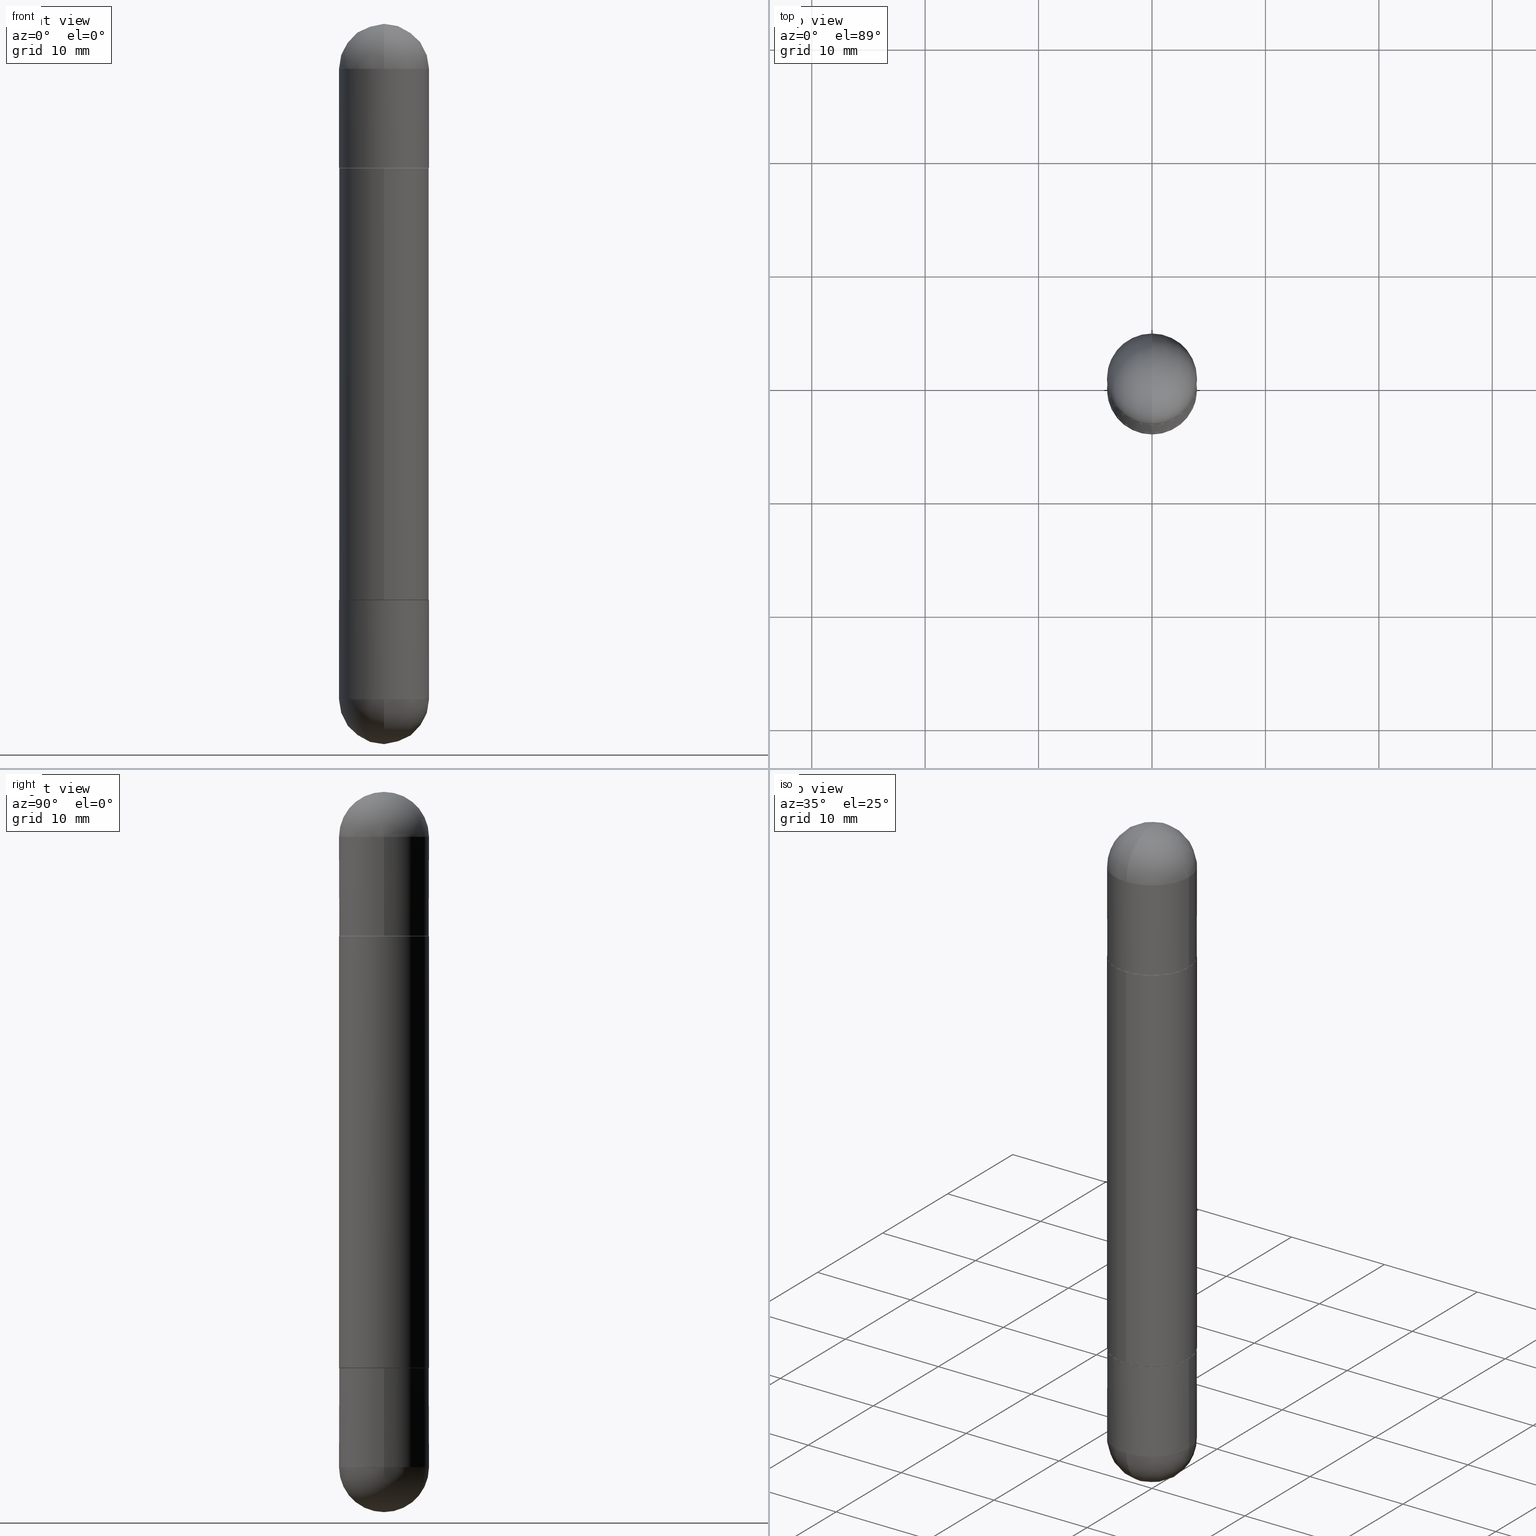
[diagram: canonical four-view strip — front | top / right | iso, engineering-drawing reading convention]
A machine part, canonical four-view strip (front | top / right | iso — engineering-drawing reading convention). The complete STEP part file that produces these views, byte-faithful:
ISO-10303-21;
HEADER;
FILE_DESCRIPTION (( 'STEP AP203' ),
    '1' );
FILE_NAME ('31234.STEP',
    '2024-03-01T12:41:18',
    ( '' ),
    ( '' ),
    'SwSTEP 2.0',
    'SolidWorks 2023',
    '' );
FILE_SCHEMA (( 'CONFIG_CONTROL_DESIGN' ));
ENDSEC;

DATA;
#1 = ADVANCED_FACE ( 'NONE', ( #642 ), #84, .T. ) ;
#2 = AXIS2_PLACEMENT_3D ( 'NONE', #287, #358, #610 ) ;
#3 = AXIS2_PLACEMENT_3D ( 'NONE', #590, #215, #717 ) ;
#4 = DATE_AND_TIME ( #442, #154 ) ;
#5 = ORIENTED_EDGE ( 'NONE', *, *, #21, .T. ) ;
#6 = EDGE_CURVE ( 'NONE', #200, #306, #817, .T. ) ;
#7 = DIRECTION ( 'NONE',  ( -2.444771269362750222E-29, 3.492480251274133284E-15, 1.000000000000000000 ) ) ;
#8 = MANIFOLD_SOLID_BREP ( 'Body-Move/Copy2[1]', #266 ) ;
#9 = MECHANICAL_CONTEXT ( 'NONE', #349, 'mechanical' ) ;
#10 = EDGE_LOOP ( 'NONE', ( #666, #443, #438, #497 ) ) ;
#11 = DIRECTION ( 'NONE',  ( -2.445468806185136877E-29, 3.491481338843145188E-15, 1.000000000000000000 ) ) ;
#12 = APPROVAL_PERSON_ORGANIZATION ( #199, #560, #757 ) ;
#13 = CALENDAR_DATE ( 2024, 1, 3 ) ;
#14 = EDGE_LOOP ( 'NONE', ( #188, #375, #128, #423 ) ) ;
#15 = DIRECTION ( 'NONE',  ( -1.000000000000000000, 6.982962677686265922E-15, 4.883557194083112340E-29 ) ) ;
#16 = MANIFOLD_SOLID_BREP ( 'Mirror4[3]', #55 ) ;
#17 = ORIENTED_EDGE ( 'NONE', *, *, #177, .F. ) ;
#18 = AXIS2_PLACEMENT_3D ( 'NONE', #597, #792, #229 ) ;
#19 = DIRECTION ( 'NONE',  ( -6.982962677686265922E-15, -1.000000000000000000, -3.519288880726909138E-15 ) ) ;
#20 = DIMENSIONAL_EXPONENTS ( 1.000000000000000000, 0.000000000000000000, 0.000000000000000000, 0.000000000000000000, 0.000000000000000000, 0.000000000000000000, 0.000000000000000000 ) ;
#21 = EDGE_CURVE ( 'NONE', #302, #121, #276, .T. ) ;
#22 = DIRECTION ( 'NONE',  ( -6.982962677686265922E-15, -1.000000000000000000, 3.519288880726909138E-15 ) ) ;
#23 = DIRECTION ( 'NONE',  ( -1.000000000000000000, 0.000000000000000000, 0.000000000000000000 ) ) ;
#24 = EDGE_CURVE ( 'NONE', #745, #268, #274, .T. ) ;
#25 = DIRECTION ( 'NONE',  ( -2.445468806185136877E-29, 3.491481338843145188E-15, -1.000000000000000000 ) ) ;
#26 = CIRCLE ( 'NONE', #133, 0.1562500000000000000 ) ;
#27 = CARTESIAN_POINT ( 'NONE',  ( 5.400447736582527652E-29, -8.657341756053672891E-15, -2.343750000000000000 ) ) ;
#28 = DIRECTION ( 'NONE',  ( 1.000000000000000000, -6.982962677686269077E-15, 0.000000000000000000 ) ) ;
#29 = EDGE_LOOP ( 'NONE', ( #370, #768, #357, #699 ) ) ;
#30 = LINE ( 'NONE', #277, #397 ) ;
#31 = DIRECTION ( 'NONE',  ( 0.000000000000000000, 0.000000000000000000, 1.000000000000000000 ) ) ;
#32 = DIRECTION ( 'NONE',  ( -1.000000000000000000, 6.982962677686265922E-15, 4.883557194083112340E-29 ) ) ;
#33 = CIRCLE ( 'NONE', #797, 0.1552499999999999991 ) ;
#34 = ADVANCED_FACE ( 'NONE', ( #778 ), #150, .T. ) ;
#35 = CARTESIAN_POINT ( 'NONE',  ( 1.071952812151851702E-15, 0.1562499999999931721, -0.5010000000000002229 ) ) ;
#36 = DIRECTION ( 'NONE',  ( 2.445468806185136597E-29, -3.491481338843145583E-15, 1.000000000000000000 ) ) ;
#37 = DIRECTION ( 'NONE',  ( -2.445468806185136597E-29, 3.491481338843145583E-15, -1.000000000000000000 ) ) ;
#38 = EDGE_CURVE ( 'NONE', #616, #238, #30, .T. ) ;
#39 = FACE_OUTER_BOUND ( 'NONE', #281, .T. ) ;
#40 = SPHERICAL_SURFACE ( 'NONE', #138, 0.1562500000000002498 ) ;
#41 = DIRECTION ( 'NONE',  ( -2.445468806185136597E-29, 3.491481338843145583E-15, 1.000000000000000000 ) ) ;
#42 = AXIS2_PLACEMENT_3D ( 'NONE', #149, #547, #652 ) ;
#43 = CARTESIAN_POINT ( 'NONE',  ( 5.731567514496413899E-29, -8.183159387913622595E-15, -2.343750000000000000 ) ) ;
#44 = DIRECTION ( 'NONE',  ( 6.982962677686265922E-15, 1.000000000000000000, 3.496765431890251398E-15 ) ) ;
#45 = CARTESIAN_POINT ( 'NONE',  ( 5.400447736582527652E-29, -8.657341756053672891E-15, -0.1562500000000005551 ) ) ;
#46 = AXIS2_PLACEMENT_3D ( 'NONE', #95, #460, #28 ) ;
#47 = CIRCLE ( 'NONE', #72, 0.1562500000000000000 ) ;
#48 = CARTESIAN_POINT ( 'NONE',  ( 5.731567514496413899E-29, -8.183159387913622595E-15, -0.1562500000000005551 ) ) ;
#49 = CARTESIAN_POINT ( 'NONE',  ( -1.091087918388479568E-15, -0.1562500000000000833, -2.500000000000001332 ) ) ;
#50 = ORIENTED_EDGE ( 'NONE', *, *, #119, .F. ) ;
#51 = EDGE_CURVE ( 'NONE', #564, #258, #283, .T. ) ;
#52 = EDGE_LOOP ( 'NONE', ( #483, #117, #65, #251, #811 ) ) ;
#53 = CARTESIAN_POINT ( 'NONE',  ( 4.887097767456137558E-29, -6.981468022296990773E-15, -0.5010000000000007780 ) ) ;
#54 = EDGE_LOOP ( 'NONE', ( #578, #676, #135, #678 ) ) ;
#55 = CLOSED_SHELL ( 'NONE', ( #674, #181, #697, #379, #755 ) ) ;
#56 =( NAMED_UNIT ( * ) PLANE_ANGLE_UNIT ( ) SI_UNIT ( $, .RADIAN. ) );
#57 = ORIENTED_EDGE ( 'NONE', *, *, #256, .T. ) ;
#58 = ORIENTED_EDGE ( 'NONE', *, *, #467, .F. ) ;
#59 = AXIS2_PLACEMENT_3D ( 'NONE', #90, #470, #412 ) ;
#60 = ORIENTED_EDGE ( 'NONE', *, *, #485, .T. ) ;
#61 = CARTESIAN_POINT ( 'NONE',  ( -1.091087918388479568E-15, -0.1562500000000000833, -2.500000000000001332 ) ) ;
#62 = ORIENTED_EDGE ( 'NONE', *, *, #629, .T. ) ;
#63 = PLANE ( 'NONE',  #2 ) ;
#64 = APPROVAL ( #630, 'UNSPECIFIED' ) ;
#65 = ORIENTED_EDGE ( 'NONE', *, *, #385, .T. ) ;
#66 = APPROVAL_DATE_TIME ( #376, #439 ) ;
#67 = EDGE_LOOP ( 'NONE', ( #179, #803, #57, #575, #556 ) ) ;
#68 = DIRECTION ( 'NONE',  ( 2.444771269362750222E-29, -3.492480251274133284E-15, 1.000000000000000000 ) ) ;
#69 = ORIENTED_EDGE ( 'NONE', *, *, #760, .F. ) ;
#70 = DIRECTION ( 'NONE',  ( -6.982962677686265922E-15, -1.000000000000000000, 3.519288880726909138E-15 ) ) ;
#71 = AXIS2_PLACEMENT_3D ( 'NONE', #502, #654, #812 ) ;
#72 = AXIS2_PLACEMENT_3D ( 'NONE', #156, #218, #99 ) ;
#73 = DATE_AND_TIME ( #80, #342 ) ;
#74 = EDGE_LOOP ( 'NONE', ( #208, #501, #621, #330 ) ) ;
#75 = DIRECTION ( 'NONE',  ( 1.000000000000000000, -6.982962677686262766E-15, 0.000000000000000000 ) ) ;
#76 = CARTESIAN_POINT ( 'NONE',  ( 0.000000000000000000, 0.000000000000000000, 0.000000000000000000 ) ) ;
#77 = VERTEX_POINT ( 'NONE', #710 ) ;
#78 = DIRECTION ( 'NONE',  ( 1.000000000000000000, -6.982962677686269077E-15, 0.000000000000000000 ) ) ;
#79 = AXIS2_PLACEMENT_3D ( 'NONE', #650, #213, #463 ) ;
#80 = CALENDAR_DATE ( 2024, 1, 3 ) ;
#81 = ORIENTED_EDGE ( 'NONE', *, *, #493, .F. ) ;
#82 = DIRECTION ( 'NONE',  ( -2.444771269362750222E-29, 3.492480251274133284E-15, 1.000000000000000000 ) ) ;
#83 = CIRCLE ( 'NONE', #592, 0.1562500000000000000 ) ;
#84 = CYLINDRICAL_SURFACE ( 'NONE', #93, 0.1562500000000000000 ) ;
#85 = AXIS2_PLACEMENT_3D ( 'NONE', #53, #371, #298 ) ;
#86 = LINE ( 'NONE', #148, #634 ) ;
#87 = ADVANCED_FACE ( 'NONE', ( #531 ), #582, .T. ) ;
#88 = DIRECTION ( 'NONE',  ( 1.000000000000000000, -6.982962677686266711E-15, 4.876176775795936353E-29 ) ) ;
#89 = DIRECTION ( 'NONE',  ( 1.000000000000000000, -6.982962677686265922E-15, -4.883557194083112340E-29 ) ) ;
#90 = CARTESIAN_POINT ( 'NONE',  ( 4.889542538725501566E-29, -6.984960502548266569E-15, -0.5000000000000004441 ) ) ;
#91 = ADVANCED_FACE ( 'NONE', ( #92 ), #784, .T. ) ;
#92 = FACE_OUTER_BOUND ( 'NONE', #191, .T. ) ;
#93 = AXIS2_PLACEMENT_3D ( 'NONE', #337, #758, #196 ) ;
#94 = DIRECTION ( 'NONE',  ( -6.982962677686265922E-15, -1.000000000000000000, -3.492480251274133284E-15 ) ) ;
#95 = CARTESIAN_POINT ( 'NONE',  ( 4.890937612370273194E-29, -6.982962677686291165E-15, -2.000000000000000000 ) ) ;
#96 = DIRECTION ( 'NONE',  ( -2.445468806185136597E-29, 3.491481338843145583E-15, 1.000000000000000000 ) ) ;
#97 = PRODUCT_DEFINITION_SHAPE ( 'NONE', 'NONE',  #815 ) ;
#98 = EDGE_CURVE ( 'NONE', #200, #559, #184, .T. ) ;
#99 = DIRECTION ( 'NONE',  ( 1.000000000000000000, -6.982962677686262766E-15, 0.000000000000000000 ) ) ;
#100 = CARTESIAN_POINT ( 'NONE',  ( -1.084104955710744053E-15, -0.1552500000000069935, -1.999999999999999778 ) ) ;
#101 = CONICAL_SURFACE ( 'NONE', #189, 0.1552499999999999991, 0.7853981633973630139 ) ;
#102 = DIRECTION ( 'NONE',  ( 1.000000000000000000, -6.982962677686262766E-15, 0.000000000000000000 ) ) ;
#103 = DIRECTION ( 'NONE',  ( -2.444771269362750222E-29, 3.492480251274133284E-15, -1.000000000000000000 ) ) ;
#104 = CARTESIAN_POINT ( 'NONE',  ( 0.000000000000000000, 0.000000000000000000, -2.500000000000000444 ) ) ;
#105 = ORIENTED_EDGE ( 'NONE', *, *, #605, .T. ) ;
#106 = DIRECTION ( 'NONE',  ( -2.445468806185136597E-29, 3.491481338843145583E-15, 1.000000000000000000 ) ) ;
#107 = LOCAL_TIME ( 7, 41, 18.00000000000000000, #753 ) ;
#108 = CARTESIAN_POINT ( 'NONE',  ( -1.071952812151746981E-15, -0.1562500000000085487, -0.1562500000000011102 ) ) ;
#109 = CARTESIAN_POINT ( 'NONE',  ( 4.890937612370273194E-29, -6.982962677686291165E-15, -0.5000000000000006661 ) ) ;
#110 = FACE_OUTER_BOUND ( 'NONE', #742, .T. ) ;
#111 = ADVANCED_FACE ( 'NONE', ( #468 ), #537, .T. ) ;
#112 = ORIENTED_EDGE ( 'NONE', *, *, #461, .T. ) ;
#113 = AXIS2_PLACEMENT_3D ( 'NONE', #514, #818, #388 ) ;
#114 = AXIS2_PLACEMENT_3D ( 'NONE', #316, #82, #273 ) ;
#115 = CARTESIAN_POINT ( 'NONE',  ( 0.000000000000000000, 0.000000000000000000, -2.500000000000000444 ) ) ;
#116 = EDGE_CURVE ( 'NONE', #232, #618, #384, .T. ) ;
#117 = ORIENTED_EDGE ( 'NONE', *, *, #38, .T. ) ;
#118 = ORIENTED_EDGE ( 'NONE', *, *, #488, .F. ) ;
#119 = EDGE_CURVE ( 'NONE', #121, #302, #746, .T. ) ;
#120 = SPHERICAL_SURFACE ( 'NONE', #303, 0.1562500000000002498 ) ;
#121 = VERTEX_POINT ( 'NONE', #100 ) ;
#122 = ORIENTED_EDGE ( 'NONE', *, *, #116, .F. ) ;
#123 = CLOSED_SHELL ( 'NONE', ( #174, #551, #611, #600, #312, #87 ) ) ;
#124 = DIRECTION ( 'NONE',  ( 1.000000000000000000, -6.982962677686265922E-15, -4.883557194083112340E-29 ) ) ;
#125 = ORIENTED_EDGE ( 'NONE', *, *, #319, .F. ) ;
#126 = EDGE_CURVE ( 'NONE', #487, #745, #26, .T. ) ;
#127 = AXIS2_PLACEMENT_3D ( 'NONE', #802, #311, #562 ) ;
#128 = ORIENTED_EDGE ( 'NONE', *, *, #641, .T. ) ;
#129 = LINE ( 'NONE', #260, #700 ) ;
#130 = VERTEX_POINT ( 'NONE', #722 ) ;
#131 = CARTESIAN_POINT ( 'NONE',  ( 4.889542538725501566E-29, -6.984960502548266569E-15, -2.000000000000000444 ) ) ;
#132 = CIRCLE ( 'NONE', #249, 0.1562500000000000000 ) ;
#133 = AXIS2_PLACEMENT_3D ( 'NONE', #289, #586, #417 ) ;
#134 = PERSON_AND_ORGANIZATION_ROLE ( 'design_owner' ) ;
#135 = ORIENTED_EDGE ( 'NONE', *, *, #6, .T. ) ;
#136 = DIRECTION ( 'NONE',  ( 1.000000000000000000, -6.982962677686266711E-15, 0.000000000000000000 ) ) ;
#137 = CIRCLE ( 'NONE', #46, 0.1562500000000000000 ) ;
#138 = AXIS2_PLACEMENT_3D ( 'NONE', #294, #89, #540 ) ;
#139 = ORIENTED_EDGE ( 'NONE', *, *, #528, .F. ) ;
#140 = CARTESIAN_POINT ( 'NONE',  ( 5.400447736582527652E-29, -8.657341756053672891E-15, -0.1562500000000005551 ) ) ;
#141 = EDGE_LOOP ( 'NONE', ( #318, #744 ) ) ;
#142 = CARTESIAN_POINT ( 'NONE',  ( 4.890937612370273194E-29, -6.982962677686291165E-15, -0.5000000000000006661 ) ) ;
#143 = ORIENTED_EDGE ( 'NONE', *, *, #119, .T. ) ;
#144 = CARTESIAN_POINT ( 'NONE',  ( -0.1562500000000000000, -6.472838008174800734E-15, -2.343750000000000000 ) ) ;
#145 = PRODUCT_RELATED_PRODUCT_CATEGORY ( 'detail', '', ( #219 ) ) ;
#146 = CARTESIAN_POINT ( 'NONE',  ( 4.889542538725501566E-29, -6.984960502548266569E-15, -0.5000000000000004441 ) ) ;
#147 = AXIS2_PLACEMENT_3D ( 'NONE', #647, #585, #411 ) ;
#148 = CARTESIAN_POINT ( 'NONE',  ( -0.1562500000000000000, 1.071952812151801807E-15, -2.500000000000000444 ) ) ;
#149 = CARTESIAN_POINT ( 'NONE',  ( 4.889542538725501566E-29, -6.984960502548266569E-15, -2.000000000000000444 ) ) ;
#150 = CYLINDRICAL_SURFACE ( 'NONE', #317, 0.1562500000000000000 ) ;
#151 = UNCERTAINTY_MEASURE_WITH_UNIT (LENGTH_MEASURE( 1.000000000000000082E-05 ), #163, 'distance_accuracy_value', 'NONE');
#152 = FACE_OUTER_BOUND ( 'NONE', #29, .T. ) ;
#153 = CARTESIAN_POINT ( 'NONE',  ( 0.1562500000000000000, -8.074050596074770339E-15, -0.5000000000000006661 ) ) ;
#154 = LOCAL_TIME ( 7, 41, 18.00000000000000000, #747 ) ;
#155 = AXIS2_PLACEMENT_3D ( 'NONE', #351, #41, #795 ) ;
#156 = CARTESIAN_POINT ( 'NONE',  ( 5.731567514496413899E-29, -8.183159387913622595E-15, -0.1562500000000005551 ) ) ;
#157 = DIRECTION ( 'NONE',  ( 2.445468806185136597E-29, -3.491481338843145583E-15, 1.000000000000000000 ) ) ;
#158 = CARTESIAN_POINT ( 'NONE',  ( 4.889542538725501566E-29, -6.984960502548266569E-15, -0.5000000000000004441 ) ) ;
#159 = DIRECTION ( 'NONE',  ( -1.000000000000000000, 7.105427357601001070E-15, -4.926315508542082329E-29 ) ) ;
#160 = DIRECTION ( 'NONE',  ( -6.982962677686265922E-15, -1.000000000000000000, 0.000000000000000000 ) ) ;
#161 = CARTESIAN_POINT ( 'NONE',  ( 1.071952812151851702E-15, 0.1562499999999931721, -0.5010000000000002229 ) ) ;
#162 = EDGE_CURVE ( 'NONE', #302, #222, #541, .T. ) ;
#163 =( CONVERSION_BASED_UNIT ( 'INCH', #240 ) LENGTH_UNIT ( ) NAMED_UNIT ( #20 ) );
#164 = DIRECTION ( 'NONE',  ( 6.982962677686265922E-15, 1.000000000000000000, 3.496765431890251398E-15 ) ) ;
#165 = ORIENTED_EDGE ( 'NONE', *, *, #465, .F. ) ;
#166 = DIRECTION ( 'NONE',  ( -2.444771269362750222E-29, 3.492480251274133284E-15, -1.000000000000000000 ) ) ;
#167 = ORIENTED_EDGE ( 'NONE', *, *, #727, .T. ) ;
#168 = EDGE_CURVE ( 'NONE', #268, #238, #237, .T. ) ;
#169 = VERTEX_POINT ( 'NONE', #591 ) ;
#170 = FACE_OUTER_BOUND ( 'NONE', #810, .T. ) ;
#171 = ORIENTED_EDGE ( 'NONE', *, *, #234, .F. ) ;
#172 = PLANE ( 'NONE',  #693 ) ;
#173 = EDGE_LOOP ( 'NONE', ( #567, #453, #498, #491, #609 ) ) ;
#174 = ADVANCED_FACE ( 'NONE', ( #800 ), #286, .T. ) ;
#175 = VECTOR ( 'NONE', #701, 39.37007874015748143 ) ;
#176 = VECTOR ( 'NONE', #459, 39.37007874015748143 ) ;
#177 = EDGE_CURVE ( 'NONE', #77, #783, #762, .T. ) ;
#178 = DIRECTION ( 'NONE',  ( 1.000000000000000000, -6.982962677686266711E-15, 0.000000000000000000 ) ) ;
#179 = ORIENTED_EDGE ( 'NONE', *, *, #617, .F. ) ;
#180 = ORIENTED_EDGE ( 'NONE', *, *, #542, .F. ) ;
#181 = ADVANCED_FACE ( 'NONE', ( #599 ), #603, .T. ) ;
#182 = DIRECTION ( 'NONE',  ( 1.000000000000000000, -6.982962677686265922E-15, -4.883557194083112340E-29 ) ) ;
#183 = ORIENTED_EDGE ( 'NONE', *, *, #24, .T. ) ;
#184 = CIRCLE ( 'NONE', #198, 0.1552499999999999991 ) ;
#185 = ORIENTED_EDGE ( 'NONE', *, *, #319, .T. ) ;
#186 = VERTEX_POINT ( 'NONE', #108 ) ;
#187 = FACE_OUTER_BOUND ( 'NONE', #365, .T. ) ;
#188 = ORIENTED_EDGE ( 'NONE', *, *, #424, .F. ) ;
#189 = AXIS2_PLACEMENT_3D ( 'NONE', #420, #549, #413 ) ;
#190 = CIRCLE ( 'NONE', #664, 0.1562500000000001665 ) ;
#191 = EDGE_LOOP ( 'NONE', ( #764, #690, #392, #17 ) ) ;
#192 = APPROVAL_ROLE ( '' ) ;
#193 = ORIENTED_EDGE ( 'NONE', *, *, #38, .F. ) ;
#194 = DIRECTION ( 'NONE',  ( 6.860497997771530774E-15, 1.000000000000000000, 0.000000000000000000 ) ) ;
#195 = APPLICATION_PROTOCOL_DEFINITION ( 'international standard', 'config_control_design', 1994, #771 ) ;
#196 = DIRECTION ( 'NONE',  ( 1.000000000000000000, -6.982962677686266711E-15, 4.876176775795936353E-29 ) ) ;
#197 = CARTESIAN_POINT ( 'NONE',  ( 4.889542538725501566E-29, -6.984960502548266569E-15, -2.000000000000000444 ) ) ;
#198 = AXIS2_PLACEMENT_3D ( 'NONE', #146, #403, #646 ) ;
#199 = PERSON_AND_ORGANIZATION ( #534, #734 ) ;
#200 = VERTEX_POINT ( 'NONE', #419 ) ;
#201 = DIRECTION ( 'NONE',  ( 1.000000000000000000, -6.860497997771530774E-15, -4.840798879624142912E-29 ) ) ;
#202 = CIRCLE ( 'NONE', #430, 0.1562500000000002498 ) ;
#203 = EDGE_CURVE ( 'NONE', #315, #588, #236, .T. ) ;
#204 = DATE_TIME_ROLE ( 'classification_date' ) ;
#205 = ORIENTED_EDGE ( 'NONE', *, *, #168, .F. ) ;
#206 = CARTESIAN_POINT ( 'NONE',  ( 1.065092314154079104E-15, 0.1552499999999930047, -0.4999999999999998335 ) ) ;
#207 = CC_DESIGN_PERSON_AND_ORGANIZATION_ASSIGNMENT ( #512, #500, ( #813 ) ) ;
#208 = ORIENTED_EDGE ( 'NONE', *, *, #406, .F. ) ;
#209 = FACE_OUTER_BOUND ( 'NONE', #67, .T. ) ;
#210 = DIRECTION ( 'NONE',  ( -2.444771269362750222E-29, 3.492480251274133284E-15, 1.000000000000000000 ) ) ;
#211 = DIRECTION ( 'NONE',  ( -7.105427357601000281E-15, -1.000000000000000000, 0.000000000000000000 ) ) ;
#212 = AXIS2_PLACEMENT_3D ( 'NONE', #142, #565, #78 ) ;
#213 = DIRECTION ( 'NONE',  ( -2.444771269362750222E-29, 3.492480251274133284E-15, -1.000000000000000000 ) ) ;
#214 = CIRCLE ( 'NONE', #702, 0.1562500000000002498 ) ;
#215 = DIRECTION ( 'NONE',  ( -2.444771269362750222E-29, 3.492480251274133284E-15, -1.000000000000000000 ) ) ;
#216 = DIRECTION ( 'NONE',  ( 1.000000000000000000, -6.982962677686266711E-15, 0.000000000000000000 ) ) ;
#217 = DIRECTION ( 'NONE',  ( -2.445468806185136877E-29, 3.491481338843145188E-15, -1.000000000000000000 ) ) ;
#218 = DIRECTION ( 'NONE',  ( 2.445468806185136597E-29, -3.491481338843145583E-15, 1.000000000000000000 ) ) ;
#219 = PRODUCT ( '31234', '31234', '', ( #9 ) ) ;
#220 = CARTESIAN_POINT ( 'NONE',  ( 5.731567514496413899E-29, -8.183159387913622595E-15, -0.1562500000000005551 ) ) ;
#221 = CARTESIAN_POINT ( 'NONE',  ( 1.071952812151802201E-15, 0.1562500000000000833, -2.500000000000000000 ) ) ;
#222 = VERTEX_POINT ( 'NONE', #663 ) ;
#223 = CARTESIAN_POINT ( 'NONE',  ( 1.091087918388535577E-15, 0.1562499999999916733, -0.1562500000000000000 ) ) ;
#224 = DIRECTION ( 'NONE',  ( 5.024295867787633249E-15, 0.7071067811864896191, 0.7071067811866054154 ) ) ;
#225 = DIRECTION ( 'NONE',  ( 1.000000000000000000, -6.982962677686262766E-15, 0.000000000000000000 ) ) ;
#226 = CARTESIAN_POINT ( 'NONE',  ( 0.000000000000000000, 0.000000000000000000, -2.500000000000000444 ) ) ;
#227 = CARTESIAN_POINT ( 'NONE',  ( 4.890937612370273194E-29, -6.982962677686291165E-15, -0.5000000000000006661 ) ) ;
#228 = CIRCLE ( 'NONE', #18, 0.1552499999999999991 ) ;
#229 = DIRECTION ( 'NONE',  ( -6.982962677686265922E-15, -1.000000000000000000, -3.519288880726909138E-15 ) ) ;
#230 = EDGE_CURVE ( 'NONE', #616, #487, #83, .T. ) ;
#231 = DIRECTION ( 'NONE',  ( -2.444771269362750222E-29, 3.492480251274133284E-15, -1.000000000000000000 ) ) ;
#232 = VERTEX_POINT ( 'NONE', #299 ) ;
#233 = DIRECTION ( 'NONE',  ( 2.445468806185136597E-29, -3.491481338843145583E-15, 1.000000000000000000 ) ) ;
#234 = EDGE_CURVE ( 'NONE', #807, #631, #714, .T. ) ;
#235 = VECTOR ( 'NONE', #809, 39.37007874015748143 ) ;
#236 = CIRCLE ( 'NONE', #489, 0.1562500000000001665 ) ;
#237 = CIRCLE ( 'NONE', #448, 0.1562500000000000000 ) ;
#238 = VERTEX_POINT ( 'NONE', #780 ) ;
#239 = EDGE_CURVE ( 'NONE', #738, #655, #137, .T. ) ;
#240 = LENGTH_MEASURE_WITH_UNIT ( LENGTH_MEASURE( 0.02539999999999999897 ), #620 );
#241 = ORIENTED_EDGE ( 'NONE', *, *, #356, .F. ) ;
#242 = AXIS2_PLACEMENT_3D ( 'NONE', #535, #604, #539 ) ;
#243 = AXIS2_PLACEMENT_3D ( 'NONE', #785, #350, #23 ) ;
#244 = ADVANCED_FACE ( 'NONE', ( #279 ), #527, .T. ) ;
#245 = DIRECTION ( 'NONE',  ( 2.445468806185136597E-29, -3.491481338843145583E-15, 1.000000000000000000 ) ) ;
#246 = EDGE_LOOP ( 'NONE', ( #193, #450, #748, #183, #649 ) ) ;
#247 = SHAPE_DEFINITION_REPRESENTATION ( #97, #431 ) ;
#248 = ORIENTED_EDGE ( 'NONE', *, *, #461, .F. ) ;
#249 = AXIS2_PLACEMENT_3D ( 'NONE', #737, #245, #546 ) ;
#250 = FACE_OUTER_BOUND ( 'NONE', #381, .T. ) ;
#251 = ORIENTED_EDGE ( 'NONE', *, *, #24, .F. ) ;
#252 = DATE_TIME_ROLE ( 'creation_date' ) ;
#253 = CARTESIAN_POINT ( 'NONE',  ( -1.084104955710744053E-15, -0.1552500000000069935, -0.5000000000000009992 ) ) ;
#254 = LINE ( 'NONE', #263, #796 ) ;
#255 = AXIS2_PLACEMENT_3D ( 'NONE', #756, #569, #136 ) ;
#256 = EDGE_CURVE ( 'NONE', #516, #258, #544, .T. ) ;
#257 = PERSON_AND_ORGANIZATION_ROLE ( 'design_supplier' ) ;
#258 = VERTEX_POINT ( 'NONE', #153 ) ;
#259 = EDGE_CURVE ( 'NONE', #783, #772, #518, .T. ) ;
#260 = CARTESIAN_POINT ( 'NONE',  ( -1.084104955710744053E-15, -0.1552500000000069935, -0.5000000000000009992 ) ) ;
#261 = PERSON_AND_ORGANIZATION ( #534, #734 ) ;
#262 = ORIENTED_EDGE ( 'NONE', *, *, #51, .T. ) ;
#263 = CARTESIAN_POINT ( 'NONE',  ( -0.1562500000000000000, 1.110223024625156540E-15, -7.685836078523291160E-30 ) ) ;
#264 = CC_DESIGN_APPROVAL ( #439, ( #293 ) ) ;
#265 = EDGE_CURVE ( 'NONE', #572, #77, #632, .T. ) ;
#266 = CLOSED_SHELL ( 'NONE', ( #34, #111, #91, #787, #1 ) ) ;
#267 = CALENDAR_DATE ( 2024, 1, 3 ) ;
#268 = VERTEX_POINT ( 'NONE', #425 ) ;
#269 = FACE_OUTER_BOUND ( 'NONE', #333, .T. ) ;
#270 = CC_DESIGN_PERSON_AND_ORGANIZATION_ASSIGNMENT ( #684, #449, ( #815 ) ) ;
#271 = AXIS2_PLACEMENT_3D ( 'NONE', #472, #353, #418 ) ;
#272 = ORIENTED_EDGE ( 'NONE', *, *, #116, .T. ) ;
#273 = DIRECTION ( 'NONE',  ( -6.982962677686266711E-15, -1.000000000000000000, 3.496765431890253370E-15 ) ) ;
#274 = LINE ( 'NONE', #589, #735 ) ;
#275 = CARTESIAN_POINT ( 'NONE',  ( 0.1562500000000000000, -1.091087918388479174E-15, 7.619026212181150377E-30 ) ) ;
#276 = CIRCLE ( 'NONE', #791, 0.1552499999999999991 ) ;
#277 = CARTESIAN_POINT ( 'NONE',  ( -0.1562500000000000000, 1.071952812151801807E-15, -2.500000000000000444 ) ) ;
#278 = DIRECTION ( 'NONE',  ( 1.000000000000000000, -6.982962677686266711E-15, 0.000000000000000000 ) ) ;
#279 = FACE_OUTER_BOUND ( 'NONE', #52, .T. ) ;
#280 = MANIFOLD_SOLID_BREP ( 'Mirror4[4]', #473 ) ;
#281 = EDGE_LOOP ( 'NONE', ( #437, #623, #167, #503 ) ) ;
#282 = CIRCLE ( 'NONE', #242, 0.1562500000000000000 ) ;
#283 = LINE ( 'NONE', #339, #679 ) ;
#284 = AXIS2_PLACEMENT_3D ( 'NONE', #197, #520, #447 ) ;
#285 = CARTESIAN_POINT ( 'NONE',  ( 0.000000000000000000, 0.000000000000000000, -1.250000000000000222 ) ) ;
#286 = CYLINDRICAL_SURFACE ( 'NONE', #515, 0.1562500000000000833 ) ;
#287 = CARTESIAN_POINT ( 'NONE',  ( 1.091087918388527886E-15, 0.1562499999999930334, -0.5000000000000001110 ) ) ;
#288 = CARTESIAN_POINT ( 'NONE',  ( 0.1562500000000000000, -8.674148951188436448E-15, -0.1562500000000005551 ) ) ;
#289 = CARTESIAN_POINT ( 'NONE',  ( 5.731567514496413899E-29, -8.183159387913622595E-15, -0.1562500000000005551 ) ) ;
#290 = EDGE_LOOP ( 'NONE', ( #688, #62, #627, #241 ) ) ;
#291 = FACE_OUTER_BOUND ( 'NONE', #373, .T. ) ;
#292 = MANIFOLD_SOLID_BREP ( 'Mirror4[1]', #123 ) ;
#293 = PRODUCT_DEFINITION_FORMATION_WITH_SPECIFIED_SOURCE ( 'ANY', '', #219, .NOT_KNOWN. ) ;
#294 = CARTESIAN_POINT ( 'NONE',  ( 5.400447736582527652E-29, -8.657341756053672891E-15, -0.1562500000000005551 ) ) ;
#295 = FACE_OUTER_BOUND ( 'NONE', #395, .T. ) ;
#296 = ADVANCED_FACE ( 'NONE', ( #39 ), #414, .T. ) ;
#297 = CIRCLE ( 'NONE', #751, 0.1562500000000001665 ) ;
#298 = DIRECTION ( 'NONE',  ( -6.982962677686266711E-15, -1.000000000000000000, -3.496765431890253370E-15 ) ) ;
#299 = CARTESIAN_POINT ( 'NONE',  ( 5.789233224183170584E-29, -9.193318162129576161E-15, -3.073328992872296367E-16 ) ) ;
#300 = AXIS2_PLACEMENT_3D ( 'NONE', #637, #579, #322 ) ;
#301 = DIRECTION ( 'NONE',  ( -2.444771269362750222E-29, 3.492480251274133284E-15, -1.000000000000000000 ) ) ;
#302 = VERTEX_POINT ( 'NONE', #543 ) ;
#303 = AXIS2_PLACEMENT_3D ( 'NONE', #369, #124, #482 ) ;
#304 = LINE ( 'NONE', #61, #421 ) ;
#305 = VERTEX_POINT ( 'NONE', #659 ) ;
#306 = VERTEX_POINT ( 'NONE', #736 ) ;
#307 = ORIENTED_EDGE ( 'NONE', *, *, #344, .T. ) ;
#308 = VERTEX_POINT ( 'NONE', #726 ) ;
#309 = CARTESIAN_POINT ( 'NONE',  ( 4.887097767456137558E-29, -6.981468022296990773E-15, -0.5010000000000007780 ) ) ;
#310 = ORIENTED_EDGE ( 'NONE', *, *, #21, .F. ) ;
#311 = DIRECTION ( 'NONE',  ( -2.444771269362749942E-29, 3.492480251274133284E-15, -1.000000000000000000 ) ) ;
#312 = ADVANCED_FACE ( 'NONE', ( #170 ), #101, .T. ) ;
#313 = ADVANCED_FACE ( 'NONE', ( #187 ), #672, .T. ) ;
#314 = PERSON_AND_ORGANIZATION ( #534, #734 ) ;
#315 = VERTEX_POINT ( 'NONE', #161 ) ;
#316 = CARTESIAN_POINT ( 'NONE',  ( 4.887097767456137558E-29, -6.981468022296990773E-15, -1.998999999999999888 ) ) ;
#317 = AXIS2_PLACEMENT_3D ( 'NONE', #719, #522, #88 ) ;
#318 = ORIENTED_EDGE ( 'NONE', *, *, #239, .T. ) ;
#319 = EDGE_CURVE ( 'NONE', #631, #807, #228, .T. ) ;
#320 = APPROVAL_STATUS ( 'not_yet_approved' ) ;
#321 = ORIENTED_EDGE ( 'NONE', *, *, #325, .T. ) ;
#322 = DIRECTION ( 'NONE',  ( -6.982962677686265922E-15, -1.000000000000000000, -3.519288880726909138E-15 ) ) ;
#323 = AXIS2_PLACEMENT_3D ( 'NONE', #790, #718, #476 ) ;
#324 = CIRCLE ( 'NONE', #114, 0.1562500000000001665 ) ;
#325 = EDGE_CURVE ( 'NONE', #169, #305, #619, .T. ) ;
#326 = ORIENTED_EDGE ( 'NONE', *, *, #571, .F. ) ;
#327 = ADVANCED_FACE ( 'NONE', ( #295 ), #798, .F. ) ;
#328 = PLANE ( 'NONE',  #739 ) ;
#329 = DIRECTION ( 'NONE',  ( 1.000000000000000000, 0.000000000000000000, 0.000000000000000000 ) ) ;
#330 = ORIENTED_EDGE ( 'NONE', *, *, #557, .F. ) ;
#331 = DIRECTION ( 'NONE',  ( 6.860497997771530774E-15, 1.000000000000000000, 0.000000000000000000 ) ) ;
#332 = CC_DESIGN_PERSON_AND_ORGANIZATION_ASSIGNMENT ( #767, #134, ( #219 ) ) ;
#333 = EDGE_LOOP ( 'NONE', ( #377, #5, #433, #180 ) ) ;
#334 = FACE_OUTER_BOUND ( 'NONE', #681, .T. ) ;
#335 = CIRCLE ( 'NONE', #212, 0.1562500000000000000 ) ;
#336 = ORIENTED_EDGE ( 'NONE', *, *, #391, .T. ) ;
#337 = CARTESIAN_POINT ( 'NONE',  ( 0.000000000000000000, 0.000000000000000000, 0.000000000000000000 ) ) ;
#338 = CARTESIAN_POINT ( 'NONE',  ( 1.091087918388535577E-15, 0.1562499999999916733, -0.1562500000000000000 ) ) ;
#339 = CARTESIAN_POINT ( 'NONE',  ( 0.1562500000000000000, -1.091087918388479174E-15, -2.500000000000000444 ) ) ;
#340 = PLANE ( 'NONE',  #715 ) ;
#341 = CARTESIAN_POINT ( 'NONE',  ( 5.400447736582527652E-29, -8.657341756053672891E-15, -0.1562500000000005551 ) ) ;
#342 = LOCAL_TIME ( 7, 41, 18.00000000000000000, #763 ) ;
#343 = LOCAL_TIME ( 7, 41, 18.00000000000000000, #574 ) ;
#344 = EDGE_CURVE ( 'NONE', #631, #315, #348, .T. ) ;
#345 = CARTESIAN_POINT ( 'NONE',  ( 5.400447736582527652E-29, -8.657341756053672891E-15, -2.343750000000000000 ) ) ;
#346 = CYLINDRICAL_SURFACE ( 'NONE', #675, 0.1562500000000000000 ) ;
#347 = DIRECTION ( 'NONE',  ( -2.445468806185136597E-29, 3.491481338843145583E-15, 1.000000000000000000 ) ) ;
#348 = LINE ( 'NONE', #477, #725 ) ;
#349 = APPLICATION_CONTEXT ( 'configuration controlled 3d designs of mechanical parts and assemblies' ) ;
#350 = DIRECTION ( 'NONE',  ( -0.000000000000000000, -0.000000000000000000, -1.000000000000000000 ) ) ;
#351 = CARTESIAN_POINT ( 'NONE',  ( 5.731567514496413899E-29, -8.183159387913622595E-15, -2.343750000000000000 ) ) ;
#352 = ADVANCED_FACE ( 'NONE', ( #291 ), #788, .F. ) ;
#353 = DIRECTION ( 'NONE',  ( -0.000000000000000000, -0.000000000000000000, -1.000000000000000000 ) ) ;
#354 = CARTESIAN_POINT ( 'NONE',  ( -0.1562500000000000000, -6.511108220648156257E-15, -0.1562500000000005551 ) ) ;
#355 = DIRECTION ( 'NONE',  ( 6.982962677686265922E-15, 1.000000000000000000, -3.496765431890251398E-15 ) ) ;
#356 = EDGE_CURVE ( 'NONE', #772, #572, #478, .T. ) ;
#357 = ORIENTED_EDGE ( 'NONE', *, *, #467, .T. ) ;
#358 = DIRECTION ( 'NONE',  ( 2.438088387897960049E-29, -3.491481338843145188E-15, 1.000000000000000000 ) ) ;
#359 = DIRECTION ( 'NONE',  ( -6.982962677686266711E-15, -1.000000000000000000, -3.496765431890253370E-15 ) ) ;
#360 = DIRECTION ( 'NONE',  ( 1.000000000000000000, -6.982962677686262766E-15, 0.000000000000000000 ) ) ;
#361 = DIRECTION ( 'NONE',  ( 1.000000000000000000, -6.982962677686269077E-15, 0.000000000000000000 ) ) ;
#362 = AXIS2_PLACEMENT_3D ( 'NONE', #593, #106, #366 ) ;
#363 = CARTESIAN_POINT ( 'NONE',  ( 4.890937612370273194E-29, -6.982962677686291165E-15, -2.000000000000000000 ) ) ;
#364 = VERTEX_POINT ( 'NONE', #35 ) ;
#365 = EDGE_LOOP ( 'NONE', ( #671, #105, #434, #682 ) ) ;
#366 = DIRECTION ( 'NONE',  ( 1.000000000000000000, -6.982962677686262766E-15, 0.000000000000000000 ) ) ;
#367 = VERTEX_POINT ( 'NONE', #667 ) ;
#368 = AXIS2_PLACEMENT_3D ( 'NONE', #363, #668, #799 ) ;
#369 = CARTESIAN_POINT ( 'NONE',  ( 5.400447736582527652E-29, -8.657341756053672891E-15, -0.1562500000000005551 ) ) ;
#370 = ORIENTED_EDGE ( 'NONE', *, *, #548, .F. ) ;
#371 = DIRECTION ( 'NONE',  ( 2.444771269362750222E-29, -3.492480251274133284E-15, 1.000000000000000000 ) ) ;
#372 = ORIENTED_EDGE ( 'NONE', *, *, #402, .T. ) ;
#373 = EDGE_LOOP ( 'NONE', ( #429, #708 ) ) ;
#374 = CIRCLE ( 'NONE', #580, 0.1562500000000000000 ) ;
#375 = ORIENTED_EDGE ( 'NONE', *, *, #548, .T. ) ;
#376 = DATE_AND_TIME ( #267, #774 ) ;
#377 = ORIENTED_EDGE ( 'NONE', *, *, #162, .F. ) ;
#378 = FACE_OUTER_BOUND ( 'NONE', #54, .T. ) ;
#379 = ADVANCED_FACE ( 'NONE', ( #250 ), #63, .F. ) ;
#380 = EDGE_LOOP ( 'NONE', ( #50, #310 ) ) ;
#381 = EDGE_LOOP ( 'NONE', ( #248, #495 ) ) ;
#382 = CC_DESIGN_SECURITY_CLASSIFICATION ( #813, ( #293 ) ) ;
#383 = CARTESIAN_POINT ( 'NONE',  ( -1.071952812151746981E-15, -0.1562500000000085487, -0.1562500000000011102 ) ) ;
#384 = CIRCLE ( 'NONE', #486, 0.1562500000000002498 ) ;
#385 = EDGE_CURVE ( 'NONE', #238, #268, #374, .T. ) ;
#386 = DATE_AND_TIME ( #622, #107 ) ;
#387 = ORIENTED_EDGE ( 'NONE', *, *, #465, .T. ) ;
#388 = DIRECTION ( 'NONE',  ( -6.982962677686265922E-15, -1.000000000000000000, -3.519288880726909138E-15 ) ) ;
#389 = CONICAL_SURFACE ( 'NONE', #568, 0.1552499999999999991, 0.7853981633973630139 ) ;
#390 = CIRCLE ( 'NONE', #594, 0.1562500000000002498 ) ;
#391 = EDGE_CURVE ( 'NONE', #618, #616, #282, .T. ) ;
#392 = ORIENTED_EDGE ( 'NONE', *, *, #259, .F. ) ;
#393 = CARTESIAN_POINT ( 'NONE',  ( 5.400447736582527652E-29, -8.657341756053672891E-15, -0.1562500000000005551 ) ) ;
#394 = APPROVAL_ROLE ( '' ) ;
#395 = EDGE_LOOP ( 'NONE', ( #205, #398 ) ) ;
#396 = DIRECTION ( 'NONE',  ( -2.444771269362749942E-29, 3.492480251274133284E-15, 1.000000000000000000 ) ) ;
#397 = VECTOR ( 'NONE', #217, 39.37007874015748143 ) ;
#398 = ORIENTED_EDGE ( 'NONE', *, *, #385, .F. ) ;
#399 = CARTESIAN_POINT ( 'NONE',  ( 5.400447736582527652E-29, -8.657341756053672891E-15, -2.343750000000000000 ) ) ;
#400 = AXIS2_PLACEMENT_3D ( 'NONE', #48, #233, #225 ) ;
#401 = AXIS2_PLACEMENT_3D ( 'NONE', #399, #159, #211 ) ;
#402 = EDGE_CURVE ( 'NONE', #745, #618, #506, .T. ) ;
#403 = DIRECTION ( 'NONE',  ( 2.444771269362750222E-29, -3.492480251274133284E-15, 1.000000000000000000 ) ) ;
#404 = DIRECTION ( 'NONE',  ( -2.445468806185136877E-29, 3.491481338843145188E-15, -1.000000000000000000 ) ) ;
#405 = DIRECTION ( 'NONE',  ( -2.444771269362750222E-29, 3.492480251274133284E-15, -1.000000000000000000 ) ) ;
#406 = EDGE_CURVE ( 'NONE', #315, #305, #484, .T. ) ;
#407 = CARTESIAN_POINT ( 'NONE',  ( 1.068522563152965403E-15, 0.1552499999999930047, -0.4999999999999998335 ) ) ;
#408 = CARTESIAN_POINT ( 'NONE',  ( 5.731567514496413899E-29, -8.183159387913622595E-15, -2.343750000000000000 ) ) ;
#409 = ADVANCED_FACE ( 'NONE', ( #517 ), #706, .T. ) ;
#410 = ADVANCED_FACE ( 'NONE', ( #378 ), #658, .T. ) ;
#411 = DIRECTION ( 'NONE',  ( -6.982962677686266711E-15, -1.000000000000000000, 3.496765431890253370E-15 ) ) ;
#412 = DIRECTION ( 'NONE',  ( -6.982962677686265922E-15, -1.000000000000000000, -3.519288880726909138E-15 ) ) ;
#413 = DIRECTION ( 'NONE',  ( -6.982962677686265922E-15, -1.000000000000000000, -3.519288880726909138E-15 ) ) ;
#414 = CONICAL_SURFACE ( 'NONE', #808, 0.1552499999999999991, 0.7853981633973630139 ) ;
#415 = EDGE_CURVE ( 'NONE', #559, #200, #33, .T. ) ;
#416 = DIRECTION ( 'NONE',  ( 1.000000000000000000, -6.982962677686265922E-15, 4.883557194083112340E-29 ) ) ;
#417 = DIRECTION ( 'NONE',  ( 1.000000000000000000, -6.982962677686262766E-15, 0.000000000000000000 ) ) ;
#418 = DIRECTION ( 'NONE',  ( -1.000000000000000000, 0.000000000000000000, 0.000000000000000000 ) ) ;
#419 = CARTESIAN_POINT ( 'NONE',  ( -1.084104955710744053E-15, -0.1552500000000069935, -0.5000000000000009992 ) ) ;
#420 = CARTESIAN_POINT ( 'NONE',  ( 4.889542538725501566E-29, -6.984960502548266569E-15, -0.5000000000000004441 ) ) ;
#421 = VECTOR ( 'NONE', #231, 39.37007874015748143 ) ;
#422 = CARTESIAN_POINT ( 'NONE',  ( 0.1562500000000000000, -8.074050596074770339E-15, -2.000000000000000000 ) ) ;
#423 = ORIENTED_EDGE ( 'NONE', *, *, #760, .T. ) ;
#424 = EDGE_CURVE ( 'NONE', #130, #686, #452, .T. ) ;
#425 = CARTESIAN_POINT ( 'NONE',  ( 0.1562500000000000000, -8.074050596074770339E-15, -0.5000000000000006661 ) ) ;
#426 = CIRCLE ( 'NONE', #558, 0.1562500000000000000 ) ;
#427 = FACE_OUTER_BOUND ( 'NONE', #141, .T. ) ;
#428 = EDGE_CURVE ( 'NONE', #559, #364, #441, .T. ) ;
#429 = ORIENTED_EDGE ( 'NONE', *, *, #98, .T. ) ;
#430 = AXIS2_PLACEMENT_3D ( 'NONE', #393, #201, #331 ) ;
#431 = ADVANCED_BREP_SHAPE_REPRESENTATION ( '31234', ( #8, #292, #16, #280, #554, #761 ), #626 ) ;
#432 = CARTESIAN_POINT ( 'NONE',  ( 5.400447736582527652E-29, -8.657341756053672891E-15, -0.1562500000000005551 ) ) ;
#433 = ORIENTED_EDGE ( 'NONE', *, *, #488, .T. ) ;
#434 = ORIENTED_EDGE ( 'NONE', *, *, #542, .T. ) ;
#435 = FACE_OUTER_BOUND ( 'NONE', #561, .T. ) ;
#436 = ORIENTED_EDGE ( 'NONE', *, *, #703, .T. ) ;
#437 = ORIENTED_EDGE ( 'NONE', *, *, #415, .F. ) ;
#438 = ORIENTED_EDGE ( 'NONE', *, *, #325, .F. ) ;
#439 = APPROVAL ( #320, 'UNSPECIFIED' ) ;
#440 = VECTOR ( 'NONE', #511, 39.37007874015748143 ) ;
#441 = LINE ( 'NONE', #206, #175 ) ;
#442 = CALENDAR_DATE ( 2024, 1, 3 ) ;
#443 = ORIENTED_EDGE ( 'NONE', *, *, #406, .T. ) ;
#444 = DIRECTION ( 'NONE',  ( -6.982962677686265922E-15, -1.000000000000000000, 3.492480251274133284E-15 ) ) ;
#445 = PERSON_AND_ORGANIZATION_ROLE ( 'creator' ) ;
#446 = EDGE_LOOP ( 'NONE', ( #122, #513, #754, #372 ) ) ;
#447 = DIRECTION ( 'NONE',  ( -6.982962677686265922E-15, -1.000000000000000000, 3.519288880726909138E-15 ) ) ;
#448 = AXIS2_PLACEMENT_3D ( 'NONE', #227, #157, #661 ) ;
#449 = PERSON_AND_ORGANIZATION_ROLE ( 'creator' ) ;
#450 = ORIENTED_EDGE ( 'NONE', *, *, #391, .F. ) ;
#451 = DIRECTION ( 'NONE',  ( 2.445468806185136597E-29, -3.491481338843145583E-15, 1.000000000000000000 ) ) ;
#452 = CIRCLE ( 'NONE', #529, 0.1562500000000002498 ) ;
#453 = ORIENTED_EDGE ( 'NONE', *, *, #265, .T. ) ;
#454 = CARTESIAN_POINT ( 'NONE',  ( -1.084104955710744053E-15, -0.1552500000000069935, -1.999999999999999778 ) ) ;
#455 = ADVANCED_FACE ( 'NONE', ( #269 ), #389, .T. ) ;
#456 = EDGE_LOOP ( 'NONE', ( #143, #669, #519, #118 ) ) ;
#457 = CARTESIAN_POINT ( 'NONE',  ( 0.000000000000000000, 0.000000000000000000, -2.500000000000000444 ) ) ;
#458 = DIRECTION ( 'NONE',  ( 6.982962677686265922E-15, 1.000000000000000000, -3.496765431890251398E-15 ) ) ;
#459 = DIRECTION ( 'NONE',  ( -2.445468806185136877E-29, 3.491481338843145188E-15, 1.000000000000000000 ) ) ;
#460 = DIRECTION ( 'NONE',  ( -2.445468806185136597E-29, 3.491481338843145583E-15, 1.000000000000000000 ) ) ;
#461 = EDGE_CURVE ( 'NONE', #258, #516, #335, .T. ) ;
#462 = AXIS2_PLACEMENT_3D ( 'NONE', #432, #182, #44 ) ;
#463 = DIRECTION ( 'NONE',  ( -6.982962677686265133E-15, -1.000000000000000000, -3.496765431890254947E-15 ) ) ;
#464 = FACE_OUTER_BOUND ( 'NONE', #446, .T. ) ;
#465 = EDGE_CURVE ( 'NONE', #807, #588, #129, .T. ) ;
#466 = CARTESIAN_POINT ( 'NONE',  ( 1.103117597267604244E-15, 0.1552499999999930047, -2.000000000000000888 ) ) ;
#467 = EDGE_CURVE ( 'NONE', #686, #308, #426, .T. ) ;
#468 = FACE_OUTER_BOUND ( 'NONE', #290, .T. ) ;
#469 = CARTESIAN_POINT ( 'NONE',  ( -1.091087918388431447E-15, -0.1562500000000071332, -1.998999999999999444 ) ) ;
#470 = DIRECTION ( 'NONE',  ( 2.444771269362750222E-29, -3.492480251274133284E-15, 1.000000000000000000 ) ) ;
#471 = APPROVAL_PERSON_ORGANIZATION ( #638, #64, #192 ) ;
#472 = CARTESIAN_POINT ( 'NONE',  ( 3.055964086703438408E-29, -4.365600314092667690E-15, -1.250000000000000222 ) ) ;
#473 = CLOSED_SHELL ( 'NONE', ( #244, #670, #804, #327, #409 ) ) ;
#474 = ADVANCED_FACE ( 'NONE', ( #573 ), #328, .F. ) ;
#475 = CARTESIAN_POINT ( 'NONE',  ( 1.071952812151802201E-15, 0.1562500000000000833, -2.500000000000000000 ) ) ;
#476 = DIRECTION ( 'NONE',  ( 1.000000000000000000, -6.982962677686269077E-15, 0.000000000000000000 ) ) ;
#477 = CARTESIAN_POINT ( 'NONE',  ( 1.065092314154079104E-15, 0.1552499999999930047, -0.4999999999999998335 ) ) ;
#478 = CIRCLE ( 'NONE', #362, 0.1562500000000000000 ) ;
#479 = LINE ( 'NONE', #49, #235 ) ;
#480 = CARTESIAN_POINT ( 'NONE',  ( 4.887097767456137558E-29, -6.981468022296990773E-15, -0.5010000000000007780 ) ) ;
#481 = DIRECTION ( 'NONE',  ( 4.851104656540550123E-15, 0.7071067811864896191, -0.7071067811866054154 ) ) ;
#482 = DIRECTION ( 'NONE',  ( 6.982962677686265922E-15, 1.000000000000000000, 3.496765431890251398E-15 ) ) ;
#483 = ORIENTED_EDGE ( 'NONE', *, *, #230, .F. ) ;
#484 = LINE ( 'NONE', #221, #606 ) ;
#485 = EDGE_CURVE ( 'NONE', #572, #655, #254, .T. ) ;
#486 = AXIS2_PLACEMENT_3D ( 'NONE', #341, #32, #160 ) ;
#487 = VERTEX_POINT ( 'NONE', #383 ) ;
#488 = EDGE_CURVE ( 'NONE', #121, #625, #773, .T. ) ;
#489 = AXIS2_PLACEMENT_3D ( 'NONE', #480, #596, #648 ) ;
#490 = APPLICATION_PROTOCOL_DEFINITION ( 'international standard', 'config_control_design', 1994, #349 ) ;
#491 = ORIENTED_EDGE ( 'NONE', *, *, #571, .T. ) ;
#492 = CIRCLE ( 'NONE', #243, 0.1562500000000000833 ) ;
#493 = EDGE_CURVE ( 'NONE', #306, #364, #297, .T. ) ;
#494 = CARTESIAN_POINT ( 'NONE',  ( 1.091087918388527886E-15, 0.1562499999999930334, -2.000000000000000444 ) ) ;
#495 = ORIENTED_EDGE ( 'NONE', *, *, #256, .F. ) ;
#496 = ORIENTED_EDGE ( 'NONE', *, *, #665, .T. ) ;
#497 = ORIENTED_EDGE ( 'NONE', *, *, #781, .F. ) ;
#498 = ORIENTED_EDGE ( 'NONE', *, *, #177, .T. ) ;
#499 = CC_DESIGN_PERSON_AND_ORGANIZATION_ASSIGNMENT ( #314, #257, ( #293 ) ) ;
#500 = PERSON_AND_ORGANIZATION_ROLE ( 'classification_officer' ) ;
#501 = ORIENTED_EDGE ( 'NONE', *, *, #703, .F. ) ;
#502 = CARTESIAN_POINT ( 'NONE',  ( 1.091087918388527886E-15, 0.1562499999999930334, -0.5000000000000001110 ) ) ;
#503 = ORIENTED_EDGE ( 'NONE', *, *, #6, .F. ) ;
#504 = SECURITY_CLASSIFICATION_LEVEL ( 'unclassified' ) ;
#505 = DIRECTION ( 'NONE',  ( -4.937700262164126002E-15, -0.7071067811864847341, -0.7071067811866103003 ) ) ;
#506 = CIRCLE ( 'NONE', #400, 0.1562500000000000000 ) ;
#507 = CARTESIAN_POINT ( 'NONE',  ( 4.889542538725501566E-29, -6.984960502548266569E-15, -0.5000000000000004441 ) ) ;
#508 = CIRCLE ( 'NONE', #782, 0.1562500000000000000 ) ;
#509 = COORDINATED_UNIVERSAL_TIME_OFFSET ( 5, 0, .BEHIND. ) ;
#510 = ORIENTED_EDGE ( 'NONE', *, *, #356, .T. ) ;
#511 = DIRECTION ( 'NONE',  ( -4.937700262164126002E-15, -0.7071067811864847341, 0.7071067811866103003 ) ) ;
#512 = PERSON_AND_ORGANIZATION ( #534, #734 ) ;
#513 = ORIENTED_EDGE ( 'NONE', *, *, #528, .T. ) ;
#514 = CARTESIAN_POINT ( 'NONE',  ( 4.889542538725501566E-29, -6.984960502548266569E-15, -0.5000000000000004441 ) ) ;
#515 = AXIS2_PLACEMENT_3D ( 'NONE', #104, #405, #786 ) ;
#516 = VERTEX_POINT ( 'NONE', #640 ) ;
#517 = FACE_OUTER_BOUND ( 'NONE', #246, .T. ) ;
#518 = CIRCLE ( 'NONE', #683, 0.1562500000000000000 ) ;
#519 = ORIENTED_EDGE ( 'NONE', *, *, #665, .F. ) ;
#520 = DIRECTION ( 'NONE',  ( -2.444771269362750222E-29, 3.492480251274133284E-15, 1.000000000000000000 ) ) ;
#521 = CC_DESIGN_DATE_AND_TIME_ASSIGNMENT ( #386, #204, ( #813 ) ) ;
#522 = DIRECTION ( 'NONE',  ( -2.445468806185136597E-29, 3.491481338843145583E-15, 1.000000000000000000 ) ) ;
#523 = LINE ( 'NONE', #475, #645 ) ;
#524 = CC_DESIGN_APPROVAL ( #64, ( #813 ) ) ;
#525 = DIRECTION ( 'NONE',  ( -2.445468806185136877E-29, 3.491481338843145188E-15, -1.000000000000000000 ) ) ;
#526 = DIRECTION ( 'NONE',  ( 6.982962677686265922E-15, 1.000000000000000000, 0.000000000000000000 ) ) ;
#527 = CYLINDRICAL_SURFACE ( 'NONE', #673, 0.1562500000000000000 ) ;
#528 = EDGE_CURVE ( 'NONE', #232, #487, #202, .T. ) ;
#529 = AXIS2_PLACEMENT_3D ( 'NONE', #691, #15, #633 ) ;
#530 = CIRCLE ( 'NONE', #147, 0.1562500000000001665 ) ;
#531 = FACE_OUTER_BOUND ( 'NONE', #74, .T. ) ;
#532 = DIRECTION ( 'NONE',  ( -1.000000000000000000, 0.000000000000000000, 0.000000000000000000 ) ) ;
#533 = CARTESIAN_POINT ( 'NONE',  ( 5.400447736582527652E-29, -8.657341756053672891E-15, -2.343750000000000000 ) ) ;
#534 = PERSON ( 'UNSPECIFIED', 'UNSPECIFIED', 'UNSPECIFIED', ('UNSPECIFIED'), ('UNSPECIFIED'), ('UNSPECIFIED') ) ;
#535 = CARTESIAN_POINT ( 'NONE',  ( 5.731567514496413899E-29, -8.183159387913622595E-15, -0.1562500000000005551 ) ) ;
#536 = DIRECTION ( 'NONE',  ( -2.444771269362749942E-29, 3.492480251274133284E-15, -1.000000000000000000 ) ) ;
#537 = SPHERICAL_SURFACE ( 'NONE', #694, 0.1562500000000002498 ) ;
#538 = AXIS2_PLACEMENT_3D ( 'NONE', #226, #680, #178 ) ;
#539 = DIRECTION ( 'NONE',  ( 1.000000000000000000, -6.982962677686262766E-15, 0.000000000000000000 ) ) ;
#540 = DIRECTION ( 'NONE',  ( 6.982962677686265922E-15, 1.000000000000000000, 3.496765431890251398E-15 ) ) ;
#541 = LINE ( 'NONE', #466, #587 ) ;
#542 = EDGE_CURVE ( 'NONE', #222, #625, #324, .T. ) ;
#543 = CARTESIAN_POINT ( 'NONE',  ( 1.106670310946405340E-15, 0.1552499999999930047, -2.000000000000000888 ) ) ;
#544 = CIRCLE ( 'NONE', #323, 0.1562500000000000000 ) ;
#545 = CONICAL_SURFACE ( 'NONE', #284, 0.1552499999999999991, 0.7853981633973630139 ) ;
#546 = DIRECTION ( 'NONE',  ( 1.000000000000000000, -6.982962677686262766E-15, 0.000000000000000000 ) ) ;
#547 = DIRECTION ( 'NONE',  ( -2.444771269362750222E-29, 3.492480251274133284E-15, 1.000000000000000000 ) ) ;
#548 = EDGE_CURVE ( 'NONE', #130, #186, #390, .T. ) ;
#549 = DIRECTION ( 'NONE',  ( -2.444771269362750222E-29, 3.492480251274133284E-15, -1.000000000000000000 ) ) ;
#550 = ORIENTED_EDGE ( 'NONE', *, *, #557, .T. ) ;
#551 = ADVANCED_FACE ( 'NONE', ( #334 ), #752, .T. ) ;
#552 =( NAMED_UNIT ( * ) SI_UNIT ( $, .STERADIAN. ) SOLID_ANGLE_UNIT ( ) );
#553 = ORIENTED_EDGE ( 'NONE', *, *, #230, .T. ) ;
#554 = MANIFOLD_SOLID_BREP ( 'Combine1', #615 ) ;
#555 = ADVANCED_FACE ( 'NONE', ( #759 ), #545, .T. ) ;
#556 = ORIENTED_EDGE ( 'NONE', *, *, #641, .F. ) ;
#557 = EDGE_CURVE ( 'NONE', #305, #169, #492, .T. ) ;
#558 = AXIS2_PLACEMENT_3D ( 'NONE', #696, #451, #75 ) ;
#559 = VERTEX_POINT ( 'NONE', #407 ) ;
#560 = APPROVAL ( #563, 'UNSPECIFIED' ) ;
#561 = EDGE_LOOP ( 'NONE', ( #139, #272, #336, #553 ) ) ;
#562 = DIRECTION ( 'NONE',  ( -6.982962677686265922E-15, -1.000000000000000000, -3.492480251274133284E-15 ) ) ;
#563 = APPROVAL_STATUS ( 'not_yet_approved' ) ;
#564 = VERTEX_POINT ( 'NONE', #288 ) ;
#565 = DIRECTION ( 'NONE',  ( 2.445468806185136597E-29, -3.491481338843145583E-15, 1.000000000000000000 ) ) ;
#566 = PERSON_AND_ORGANIZATION ( #534, #734 ) ;
#567 = ORIENTED_EDGE ( 'NONE', *, *, #485, .F. ) ;
#568 = AXIS2_PLACEMENT_3D ( 'NONE', #131, #7, #70 ) ;
#569 = DIRECTION ( 'NONE',  ( -2.445468806185136597E-29, 3.491481338843145583E-15, -1.000000000000000000 ) ) ;
#570 = CIRCLE ( 'NONE', #401, 0.1562500000000002498 ) ;
#571 = EDGE_CURVE ( 'NONE', #783, #738, #595, .T. ) ;
#572 = VERTEX_POINT ( 'NONE', #144 ) ;
#573 = FACE_OUTER_BOUND ( 'NONE', #380, .T. ) ;
#574 = COORDINATED_UNIVERSAL_TIME_OFFSET ( 5, 0, .BEHIND. ) ;
#575 = ORIENTED_EDGE ( 'NONE', *, *, #51, .F. ) ;
#576 = DIRECTION ( 'NONE',  ( 1.000000000000000000, -6.860497997771530774E-15, -4.840798879624142912E-29 ) ) ;
#577 = VECTOR ( 'NONE', #505, 39.37007874015748143 ) ;
#578 = ORIENTED_EDGE ( 'NONE', *, *, #428, .F. ) ;
#579 = DIRECTION ( 'NONE',  ( -2.444771269362750222E-29, 3.492480251274133284E-15, -1.000000000000000000 ) ) ;
#580 = AXIS2_PLACEMENT_3D ( 'NONE', #109, #749, #361 ) ;
#581 = CC_DESIGN_PERSON_AND_ORGANIZATION_ASSIGNMENT ( #566, #445, ( #293 ) ) ;
#582 = CYLINDRICAL_SURFACE ( 'NONE', #79, 0.1562500000000000833 ) ;
#583 = CYLINDRICAL_SURFACE ( 'NONE', #3, 0.1562500000000000833 ) ;
#584 = AXIS2_PLACEMENT_3D ( 'NONE', #45, #729, #164 ) ;
#585 = DIRECTION ( 'NONE',  ( -2.444771269362750222E-29, 3.492480251274133284E-15, 1.000000000000000000 ) ) ;
#586 = DIRECTION ( 'NONE',  ( 2.445468806185136597E-29, -3.491481338843145583E-15, 1.000000000000000000 ) ) ;
#587 = VECTOR ( 'NONE', #224, 39.37007874015748143 ) ;
#588 = VERTEX_POINT ( 'NONE', #660 ) ;
#589 = CARTESIAN_POINT ( 'NONE',  ( 0.1562500000000000000, -1.091087918388479174E-15, -2.500000000000000444 ) ) ;
#590 = CARTESIAN_POINT ( 'NONE',  ( 0.000000000000000000, 0.000000000000000000, -2.500000000000000444 ) ) ;
#591 = CARTESIAN_POINT ( 'NONE',  ( -1.091087918388439730E-15, -0.1562500000000044409, -1.250000000000000222 ) ) ;
#592 = AXIS2_PLACEMENT_3D ( 'NONE', #220, #713, #360 ) ;
#593 = CARTESIAN_POINT ( 'NONE',  ( 5.731567514496413899E-29, -8.183159387913622595E-15, -2.343750000000000000 ) ) ;
#594 = AXIS2_PLACEMENT_3D ( 'NONE', #140, #576, #194 ) ;
#595 = LINE ( 'NONE', #275, #176 ) ;
#596 = DIRECTION ( 'NONE',  ( 2.444771269362750222E-29, -3.492480251274133284E-15, 1.000000000000000000 ) ) ;
#597 = CARTESIAN_POINT ( 'NONE',  ( 4.889542538725501566E-29, -6.984960502548266569E-15, -0.5000000000000004441 ) ) ;
#598 = CARTESIAN_POINT ( 'NONE',  ( -0.1562500000000000000, -6.472838008174799945E-15, -2.000000000000000000 ) ) ;
#599 = FACE_OUTER_BOUND ( 'NONE', #14, .T. ) ;
#600 = ADVANCED_FACE ( 'NONE', ( #651 ), #709, .F. ) ;
#601 = DIRECTION ( 'NONE',  ( 1.000000000000000000, -6.982962677686262766E-15, 0.000000000000000000 ) ) ;
#602 = CARTESIAN_POINT ( 'NONE',  ( 0.1562500000000000000, -8.674148951188436448E-15, -0.1562500000000005551 ) ) ;
#603 = SPHERICAL_SURFACE ( 'NONE', #584, 0.1562500000000002498 ) ;
#604 = DIRECTION ( 'NONE',  ( 2.445468806185136597E-29, -3.491481338843145583E-15, 1.000000000000000000 ) ) ;
#605 = EDGE_CURVE ( 'NONE', #364, #222, #523, .T. ) ;
#606 = VECTOR ( 'NONE', #723, 39.37007874015748143 ) ;
#607 = AXIS2_PLACEMENT_3D ( 'NONE', #779, #536, #94 ) ;
#608 = DIRECTION ( 'NONE',  ( 2.444771269362750222E-29, -3.492480251274133284E-15, 1.000000000000000000 ) ) ;
#609 = ORIENTED_EDGE ( 'NONE', *, *, #766, .F. ) ;
#610 = DIRECTION ( 'NONE',  ( -1.000000000000000000, 6.982962677686265922E-15, 4.876176775795935793E-29 ) ) ;
#611 = ADVANCED_FACE ( 'NONE', ( #776 ), #340, .F. ) ;
#612 = CYLINDRICAL_SURFACE ( 'NONE', #538, 0.1562500000000000000 ) ;
#613 = ORIENTED_EDGE ( 'NONE', *, *, #344, .F. ) ;
#614 = CIRCLE ( 'NONE', #368, 0.1562500000000000000 ) ;
#615 = CLOSED_SHELL ( 'NONE', ( #555, #313, #296, #352, #410, #692, #455, #474 ) ) ;
#616 = VERTEX_POINT ( 'NONE', #354 ) ;
#617 = EDGE_CURVE ( 'NONE', #308, #186, #47, .T. ) ;
#618 = VERTEX_POINT ( 'NONE', #223 ) ;
#619 = CIRCLE ( 'NONE', #271, 0.1562500000000000833 ) ;
#620 =( LENGTH_UNIT ( ) NAMED_UNIT ( * ) SI_UNIT ( $, .METRE. ) );
#621 = ORIENTED_EDGE ( 'NONE', *, *, #781, .T. ) ;
#622 = CALENDAR_DATE ( 2024, 1, 3 ) ;
#623 = ORIENTED_EDGE ( 'NONE', *, *, #428, .T. ) ;
#624 = CARTESIAN_POINT ( 'NONE',  ( 4.889542538725501005E-29, -6.984960502548265780E-15, -2.000000000000000000 ) ) ;
#625 = VERTEX_POINT ( 'NONE', #469 ) ;
#626 =( GEOMETRIC_REPRESENTATION_CONTEXT ( 3 ) GLOBAL_UNCERTAINTY_ASSIGNED_CONTEXT ( ( #151 ) ) GLOBAL_UNIT_ASSIGNED_CONTEXT ( ( #163, #56, #552 ) ) REPRESENTATION_CONTEXT ( 'NONE', 'WORKASPACE' ) );
#627 = ORIENTED_EDGE ( 'NONE', *, *, #265, .F. ) ;
#628 = DIRECTION ( 'NONE',  ( -6.982962677686266711E-15, -1.000000000000000000, -3.496765431890253370E-15 ) ) ;
#629 = EDGE_CURVE ( 'NONE', #367, #77, #570, .T. ) ;
#630 = APPROVAL_STATUS ( 'not_yet_approved' ) ;
#631 = VERTEX_POINT ( 'NONE', #712 ) ;
#632 = CIRCLE ( 'NONE', #769, 0.1562500000000000000 ) ;
#633 = DIRECTION ( 'NONE',  ( -6.982962677686265922E-15, -1.000000000000000000, 0.000000000000000000 ) ) ;
#634 = VECTOR ( 'NONE', #404, 39.37007874015748143 ) ;
#635 = ORIENTED_EDGE ( 'NONE', *, *, #234, .T. ) ;
#636 = EDGE_CURVE ( 'NONE', #308, #516, #86, .T. ) ;
#637 = CARTESIAN_POINT ( 'NONE',  ( 4.889542538725501566E-29, -6.984960502548266569E-15, -0.5000000000000004441 ) ) ;
#638 = PERSON_AND_ORGANIZATION ( #534, #734 ) ;
#639 = ORIENTED_EDGE ( 'NONE', *, *, #203, .T. ) ;
#640 = CARTESIAN_POINT ( 'NONE',  ( -0.1562500000000000000, -6.511108220648155468E-15, -0.5000000000000006661 ) ) ;
#641 = EDGE_CURVE ( 'NONE', #186, #564, #508, .T. ) ;
#642 = FACE_OUTER_BOUND ( 'NONE', #173, .T. ) ;
#643 = DIRECTION ( 'NONE',  ( -2.445468806185136597E-29, 3.491481338843145583E-15, -1.000000000000000000 ) ) ;
#644 = AXIS2_PLACEMENT_3D ( 'NONE', #115, #301, #662 ) ;
#645 = VECTOR ( 'NONE', #103, 39.37007874015748143 ) ;
#646 = DIRECTION ( 'NONE',  ( -6.982962677686265922E-15, -1.000000000000000000, -3.519288880726909138E-15 ) ) ;
#647 = CARTESIAN_POINT ( 'NONE',  ( 4.887097767456137558E-29, -6.981468022296990773E-15, -1.998999999999999888 ) ) ;
#648 = DIRECTION ( 'NONE',  ( -6.982962677686266711E-15, -1.000000000000000000, -3.496765431890253370E-15 ) ) ;
#649 = ORIENTED_EDGE ( 'NONE', *, *, #168, .T. ) ;
#650 = CARTESIAN_POINT ( 'NONE',  ( 0.000000000000000000, 0.000000000000000000, -2.500000000000000444 ) ) ;
#651 = FACE_OUTER_BOUND ( 'NONE', #730, .T. ) ;
#652 = DIRECTION ( 'NONE',  ( -6.982962677686265922E-15, -1.000000000000000000, 3.519288880726909138E-15 ) ) ;
#653 = AXIS2_PLACEMENT_3D ( 'NONE', #345, #775, #458 ) ;
#654 = DIRECTION ( 'NONE',  ( 2.438088387897960049E-29, -3.491481338843145188E-15, 1.000000000000000000 ) ) ;
#655 = VERTEX_POINT ( 'NONE', #598 ) ;
#656 = FACE_OUTER_BOUND ( 'NONE', #733, .T. ) ;
#657 = CARTESIAN_POINT ( 'NONE',  ( 0.000000000000000000, 0.000000000000000000, -2.500000000000000444 ) ) ;
#658 = CONICAL_SURFACE ( 'NONE', #113, 0.1552499999999999991, 0.7853981633973630139 ) ;
#659 = CARTESIAN_POINT ( 'NONE',  ( 1.071952812151850716E-15, 0.1562499999999956979, -1.250000000000000222 ) ) ;
#660 = CARTESIAN_POINT ( 'NONE',  ( -1.091087918388431447E-15, -0.1562500000000071887, -0.5010000000000013332 ) ) ;
#661 = DIRECTION ( 'NONE',  ( 1.000000000000000000, -6.982962677686269077E-15, 0.000000000000000000 ) ) ;
#662 = DIRECTION ( 'NONE',  ( -6.982962677686265133E-15, -1.000000000000000000, -3.496765431890254947E-15 ) ) ;
#663 = CARTESIAN_POINT ( 'NONE',  ( 1.071952812151832967E-15, 0.1562499999999931999, -1.999000000000000554 ) ) ;
#664 = AXIS2_PLACEMENT_3D ( 'NONE', #309, #608, #359 ) ;
#665 = EDGE_CURVE ( 'NONE', #625, #222, #530, .T. ) ;
#666 = ORIENTED_EDGE ( 'NONE', *, *, #203, .F. ) ;
#667 = CARTESIAN_POINT ( 'NONE',  ( 5.789233224183170584E-29, -9.193318162129576161E-15, -2.500000000000000000 ) ) ;
#668 = DIRECTION ( 'NONE',  ( -2.445468806185136597E-29, 3.491481338843145583E-15, 1.000000000000000000 ) ) ;
#669 = ORIENTED_EDGE ( 'NONE', *, *, #162, .T. ) ;
#670 = ADVANCED_FACE ( 'NONE', ( #464 ), #40, .T. ) ;
#671 = ORIENTED_EDGE ( 'NONE', *, *, #727, .F. ) ;
#672 = CYLINDRICAL_SURFACE ( 'NONE', #644, 0.1562500000000000833 ) ;
#673 = AXIS2_PLACEMENT_3D ( 'NONE', #657, #37, #216 ) ;
#674 = ADVANCED_FACE ( 'NONE', ( #209 ), #346, .T. ) ;
#675 = AXIS2_PLACEMENT_3D ( 'NONE', #457, #643, #278 ) ;
#676 = ORIENTED_EDGE ( 'NONE', *, *, #98, .F. ) ;
#677 = CARTESIAN_POINT ( 'NONE',  ( 0.1562500000000000000, -8.674148951188436448E-15, -2.343750000000000000 ) ) ;
#678 = ORIENTED_EDGE ( 'NONE', *, *, #493, .T. ) ;
#679 = VECTOR ( 'NONE', #25, 39.37007874015748143 ) ;
#680 = DIRECTION ( 'NONE',  ( -2.445468806185136597E-29, 3.491481338843145583E-15, -1.000000000000000000 ) ) ;
#681 = EDGE_LOOP ( 'NONE', ( #125, #307, #639, #165 ) ) ;
#682 = ORIENTED_EDGE ( 'NONE', *, *, #777, .F. ) ;
#683 = AXIS2_PLACEMENT_3D ( 'NONE', #408, #347, #102 ) ;
#684 = PERSON_AND_ORGANIZATION ( #534, #734 ) ;
#685 = EDGE_CURVE ( 'NONE', #367, #772, #214, .T. ) ;
#686 = VERTEX_POINT ( 'NONE', #338 ) ;
#687 = CARTESIAN_POINT ( 'NONE',  ( 4.887097767456137558E-29, -6.981468022296990773E-15, -0.5010000000000007780 ) ) ;
#688 = ORIENTED_EDGE ( 'NONE', *, *, #685, .F. ) ;
#689 = APPROVAL_DATE_TIME ( #73, #64 ) ;
#690 = ORIENTED_EDGE ( 'NONE', *, *, #685, .T. ) ;
#691 = CARTESIAN_POINT ( 'NONE',  ( 5.400447736582527652E-29, -8.657341756053672891E-15, -0.1562500000000005551 ) ) ;
#692 = ADVANCED_FACE ( 'NONE', ( #656 ), #583, .T. ) ;
#693 = AXIS2_PLACEMENT_3D ( 'NONE', #494, #794, #728 ) ;
#694 = AXIS2_PLACEMENT_3D ( 'NONE', #533, #724, #355 ) ;
#695 = ORIENTED_EDGE ( 'NONE', *, *, #636, .F. ) ;
#696 = CARTESIAN_POINT ( 'NONE',  ( 5.731567514496413899E-29, -8.183159387913622595E-15, -0.1562500000000005551 ) ) ;
#697 = ADVANCED_FACE ( 'NONE', ( #152 ), #741, .T. ) ;
#698 = APPROVAL_DATE_TIME ( #704, #560 ) ;
#699 = ORIENTED_EDGE ( 'NONE', *, *, #617, .T. ) ;
#700 = VECTOR ( 'NONE', #770, 39.37007874015748143 ) ;
#701 = DIRECTION ( 'NONE',  ( 4.851104656540550123E-15, 0.7071067811864896191, -0.7071067811866054154 ) ) ;
#702 = AXIS2_PLACEMENT_3D ( 'NONE', #27, #416, #526 ) ;
#703 = EDGE_CURVE ( 'NONE', #588, #315, #740, .T. ) ;
#704 = DATE_AND_TIME ( #13, #343 ) ;
#705 = EDGE_LOOP ( 'NONE', ( #321, #550 ) ) ;
#706 = CYLINDRICAL_SURFACE ( 'NONE', #255, 0.1562500000000000000 ) ;
#707 = APPROVAL_PERSON_ORGANIZATION ( #261, #439, #394 ) ;
#708 = ORIENTED_EDGE ( 'NONE', *, *, #415, .T. ) ;
#709 = PLANE ( 'NONE',  #607 ) ;
#710 = CARTESIAN_POINT ( 'NONE',  ( -1.110223024625101517E-15, -0.1562500000000085487, -2.343749999999999556 ) ) ;
#711 = DESIGN_CONTEXT ( 'detailed design', #771, 'design' ) ;
#712 = CARTESIAN_POINT ( 'NONE',  ( 1.068522563152965403E-15, 0.1552499999999930047, -0.4999999999999998335 ) ) ;
#713 = DIRECTION ( 'NONE',  ( 2.445468806185136597E-29, -3.491481338843145583E-15, 1.000000000000000000 ) ) ;
#714 = CIRCLE ( 'NONE', #59, 0.1552499999999999991 ) ;
#715 = AXIS2_PLACEMENT_3D ( 'NONE', #285, #31, #532 ) ;
#716 = CARTESIAN_POINT ( 'NONE',  ( 4.889542538725501566E-29, -6.984960502548266569E-15, -2.000000000000000444 ) ) ;
#717 = DIRECTION ( 'NONE',  ( -6.982962677686265133E-15, -1.000000000000000000, -3.496765431890254947E-15 ) ) ;
#718 = DIRECTION ( 'NONE',  ( 2.445468806185136597E-29, -3.491481338843145583E-15, 1.000000000000000000 ) ) ;
#719 = CARTESIAN_POINT ( 'NONE',  ( 0.000000000000000000, 0.000000000000000000, 0.000000000000000000 ) ) ;
#720 = CC_DESIGN_APPROVAL ( #560, ( #815 ) ) ;
#721 = DIRECTION ( 'NONE',  ( 1.000000000000000000, -6.982962677686262766E-15, 0.000000000000000000 ) ) ;
#722 = CARTESIAN_POINT ( 'NONE',  ( 5.789233224183170584E-29, -9.193318162129576161E-15, -3.073328992872296367E-16 ) ) ;
#723 = DIRECTION ( 'NONE',  ( -2.444771269362750222E-29, 3.492480251274133284E-15, -1.000000000000000000 ) ) ;
#724 = DIRECTION ( 'NONE',  ( -1.000000000000000000, 6.982962677686265922E-15, -4.883557194083112340E-29 ) ) ;
#725 = VECTOR ( 'NONE', #481, 39.37007874015748143 ) ;
#726 = CARTESIAN_POINT ( 'NONE',  ( -0.1562500000000000000, -6.511108220648156257E-15, -0.1562500000000005551 ) ) ;
#727 = EDGE_CURVE ( 'NONE', #364, #306, #190, .T. ) ;
#728 = DIRECTION ( 'NONE',  ( -1.000000000000000000, 6.982962677686265922E-15, -4.876176775795935793E-29 ) ) ;
#729 = DIRECTION ( 'NONE',  ( 1.000000000000000000, -6.982962677686265922E-15, -4.883557194083112340E-29 ) ) ;
#730 = EDGE_LOOP ( 'NONE', ( #635, #185 ) ) ;
#731 = DIRECTION ( 'NONE',  ( -6.982962677686265922E-15, -1.000000000000000000, -3.519288880726909138E-15 ) ) ;
#732 = CARTESIAN_POINT ( 'NONE',  ( -1.084104955710744053E-15, -0.1552500000000069935, -0.5000000000000009992 ) ) ;
#733 = EDGE_LOOP ( 'NONE', ( #801, #81, #743, #496 ) ) ;
#734 = ORGANIZATION ( 'UNSPECIFIED', 'UNSPECIFIED', '' ) ;
#735 = VECTOR ( 'NONE', #525, 39.37007874015748143 ) ;
#736 = CARTESIAN_POINT ( 'NONE',  ( -1.091087918388431447E-15, -0.1562500000000071887, -0.5010000000000013332 ) ) ;
#737 = CARTESIAN_POINT ( 'NONE',  ( 5.731567514496413899E-29, -8.183159387913622595E-15, -0.1562500000000005551 ) ) ;
#738 = VERTEX_POINT ( 'NONE', #422 ) ;
#739 = AXIS2_PLACEMENT_3D ( 'NONE', #624, #396, #444 ) ;
#740 = CIRCLE ( 'NONE', #85, 0.1562500000000001665 ) ;
#741 = SPHERICAL_SURFACE ( 'NONE', #462, 0.1562500000000002498 ) ;
#742 = EDGE_LOOP ( 'NONE', ( #695, #58, #69, #262, #112 ) ) ;
#743 = ORIENTED_EDGE ( 'NONE', *, *, #777, .T. ) ;
#744 = ORIENTED_EDGE ( 'NONE', *, *, #766, .T. ) ;
#745 = VERTEX_POINT ( 'NONE', #602 ) ;
#746 = CIRCLE ( 'NONE', #42, 0.1552499999999999991 ) ;
#747 = COORDINATED_UNIVERSAL_TIME_OFFSET ( 5, 0, .BEHIND. ) ;
#748 = ORIENTED_EDGE ( 'NONE', *, *, #402, .F. ) ;
#749 = DIRECTION ( 'NONE',  ( 2.445468806185136597E-29, -3.491481338843145583E-15, 1.000000000000000000 ) ) ;
#750 = ORIENTED_EDGE ( 'NONE', *, *, #239, .F. ) ;
#751 = AXIS2_PLACEMENT_3D ( 'NONE', #687, #68, #628 ) ;
#752 = CONICAL_SURFACE ( 'NONE', #300, 0.1552499999999999991, 0.7853981633973630139 ) ;
#753 = COORDINATED_UNIVERSAL_TIME_OFFSET ( 5, 0, .BEHIND. ) ;
#754 = ORIENTED_EDGE ( 'NONE', *, *, #126, .T. ) ;
#755 = ADVANCED_FACE ( 'NONE', ( #110 ), #612, .T. ) ;
#756 = CARTESIAN_POINT ( 'NONE',  ( 0.000000000000000000, 0.000000000000000000, -2.500000000000000444 ) ) ;
#757 = APPROVAL_ROLE ( '' ) ;
#758 = DIRECTION ( 'NONE',  ( -2.445468806185136597E-29, 3.491481338843145583E-15, 1.000000000000000000 ) ) ;
#759 = FACE_OUTER_BOUND ( 'NONE', #456, .T. ) ;
#760 = EDGE_CURVE ( 'NONE', #564, #686, #132, .T. ) ;
#761 = AXIS2_PLACEMENT_3D ( 'NONE', #76, #816, #329 ) ;
#762 = CIRCLE ( 'NONE', #155, 0.1562500000000000000 ) ;
#763 = COORDINATED_UNIVERSAL_TIME_OFFSET ( 5, 0, .BEHIND. ) ;
#764 = ORIENTED_EDGE ( 'NONE', *, *, #629, .F. ) ;
#765 = DIRECTION ( 'NONE',  ( 2.444771269362750222E-29, -3.492480251274133284E-15, 1.000000000000000000 ) ) ;
#766 = EDGE_CURVE ( 'NONE', #655, #738, #614, .T. ) ;
#767 = PERSON_AND_ORGANIZATION ( #534, #734 ) ;
#768 = ORIENTED_EDGE ( 'NONE', *, *, #424, .T. ) ;
#769 = AXIS2_PLACEMENT_3D ( 'NONE', #43, #96, #601 ) ;
#770 = DIRECTION ( 'NONE',  ( -4.937700262164126002E-15, -0.7071067811864847341, -0.7071067811866103003 ) ) ;
#771 = APPLICATION_CONTEXT ( 'configuration controlled 3d designs of mechanical parts and assemblies' ) ;
#772 = VERTEX_POINT ( 'NONE', #805 ) ;
#773 = LINE ( 'NONE', #454, #440 ) ;
#774 = LOCAL_TIME ( 7, 41, 18.00000000000000000, #509 ) ;
#775 = DIRECTION ( 'NONE',  ( -1.000000000000000000, 6.982962677686265922E-15, -4.883557194083112340E-29 ) ) ;
#776 = FACE_OUTER_BOUND ( 'NONE', #705, .T. ) ;
#777 = EDGE_CURVE ( 'NONE', #306, #625, #479, .T. ) ;
#778 = FACE_OUTER_BOUND ( 'NONE', #806, .T. ) ;
#779 = CARTESIAN_POINT ( 'NONE',  ( 4.889542538725501005E-29, -6.984960502548265780E-15, -0.5000000000000006661 ) ) ;
#780 = CARTESIAN_POINT ( 'NONE',  ( -0.1562500000000000000, -6.511108220648155468E-15, -0.5000000000000006661 ) ) ;
#781 = EDGE_CURVE ( 'NONE', #588, #169, #304, .T. ) ;
#782 = AXIS2_PLACEMENT_3D ( 'NONE', #789, #36, #721 ) ;
#783 = VERTEX_POINT ( 'NONE', #677 ) ;
#784 = SPHERICAL_SURFACE ( 'NONE', #653, 0.1562500000000002498 ) ;
#785 = CARTESIAN_POINT ( 'NONE',  ( 3.055964086703438408E-29, -4.365600314092667690E-15, -1.250000000000000222 ) ) ;
#786 = DIRECTION ( 'NONE',  ( -6.982962677686265133E-15, -1.000000000000000000, -3.496765431890254947E-15 ) ) ;
#787 = ADVANCED_FACE ( 'NONE', ( #427 ), #172, .F. ) ;
#788 = PLANE ( 'NONE',  #127 ) ;
#789 = CARTESIAN_POINT ( 'NONE',  ( 5.731567514496413899E-29, -8.183159387913622595E-15, -0.1562500000000005551 ) ) ;
#790 = CARTESIAN_POINT ( 'NONE',  ( 4.890937612370273194E-29, -6.982962677686291165E-15, -0.5000000000000006661 ) ) ;
#791 = AXIS2_PLACEMENT_3D ( 'NONE', #716, #210, #22 ) ;
#792 = DIRECTION ( 'NONE',  ( 2.444771269362750222E-29, -3.492480251274133284E-15, 1.000000000000000000 ) ) ;
#793 = CC_DESIGN_DATE_AND_TIME_ASSIGNMENT ( #4, #252, ( #815 ) ) ;
#794 = DIRECTION ( 'NONE',  ( 2.438088387897960049E-29, -3.491481338843145188E-15, -1.000000000000000000 ) ) ;
#795 = DIRECTION ( 'NONE',  ( 1.000000000000000000, -6.982962677686262766E-15, 0.000000000000000000 ) ) ;
#796 = VECTOR ( 'NONE', #11, 39.37007874015748143 ) ;
#797 = AXIS2_PLACEMENT_3D ( 'NONE', #507, #765, #19 ) ;
#798 = PLANE ( 'NONE',  #71 ) ;
#799 = DIRECTION ( 'NONE',  ( 1.000000000000000000, -6.982962677686269077E-15, 0.000000000000000000 ) ) ;
#800 = FACE_OUTER_BOUND ( 'NONE', #10, .T. ) ;
#801 = ORIENTED_EDGE ( 'NONE', *, *, #605, .F. ) ;
#802 = CARTESIAN_POINT ( 'NONE',  ( 4.889542538725501005E-29, -6.984960502548265780E-15, -0.5000000000000006661 ) ) ;
#803 = ORIENTED_EDGE ( 'NONE', *, *, #636, .T. ) ;
#804 = ADVANCED_FACE ( 'NONE', ( #435 ), #120, .T. ) ;
#805 = CARTESIAN_POINT ( 'NONE',  ( 1.091087918388535577E-15, 0.1562499999999916733, -2.343750000000000444 ) ) ;
#806 = EDGE_LOOP ( 'NONE', ( #510, #60, #750, #326, #814 ) ) ;
#807 = VERTEX_POINT ( 'NONE', #732 ) ;
#808 = AXIS2_PLACEMENT_3D ( 'NONE', #158, #166, #731 ) ;
#809 = DIRECTION ( 'NONE',  ( -2.444771269362750222E-29, 3.492480251274133284E-15, -1.000000000000000000 ) ) ;
#810 = EDGE_LOOP ( 'NONE', ( #613, #171, #387, #436 ) ) ;
#811 = ORIENTED_EDGE ( 'NONE', *, *, #126, .F. ) ;
#812 = DIRECTION ( 'NONE',  ( -1.000000000000000000, 6.982962677686265922E-15, 4.876176775795935793E-29 ) ) ;
#813 = SECURITY_CLASSIFICATION ( '', '', #504 ) ;
#814 = ORIENTED_EDGE ( 'NONE', *, *, #259, .T. ) ;
#815 = PRODUCT_DEFINITION ( 'UNKNOWN', '', #293, #711 ) ;
#816 = DIRECTION ( 'NONE',  ( 0.000000000000000000, 0.000000000000000000, 1.000000000000000000 ) ) ;
#817 = LINE ( 'NONE', #253, #577 ) ;
#818 = DIRECTION ( 'NONE',  ( -2.444771269362750222E-29, 3.492480251274133284E-15, -1.000000000000000000 ) ) ;
ENDSEC;
END-ISO-10303-21;
